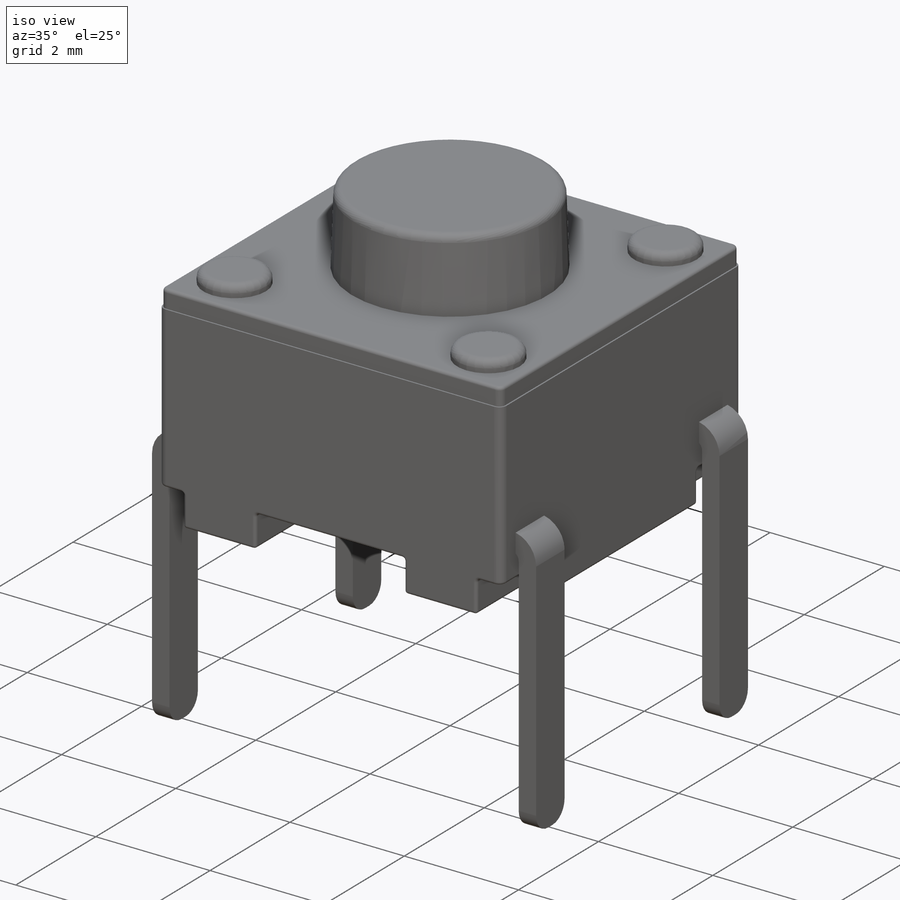
[diagram: iso view]
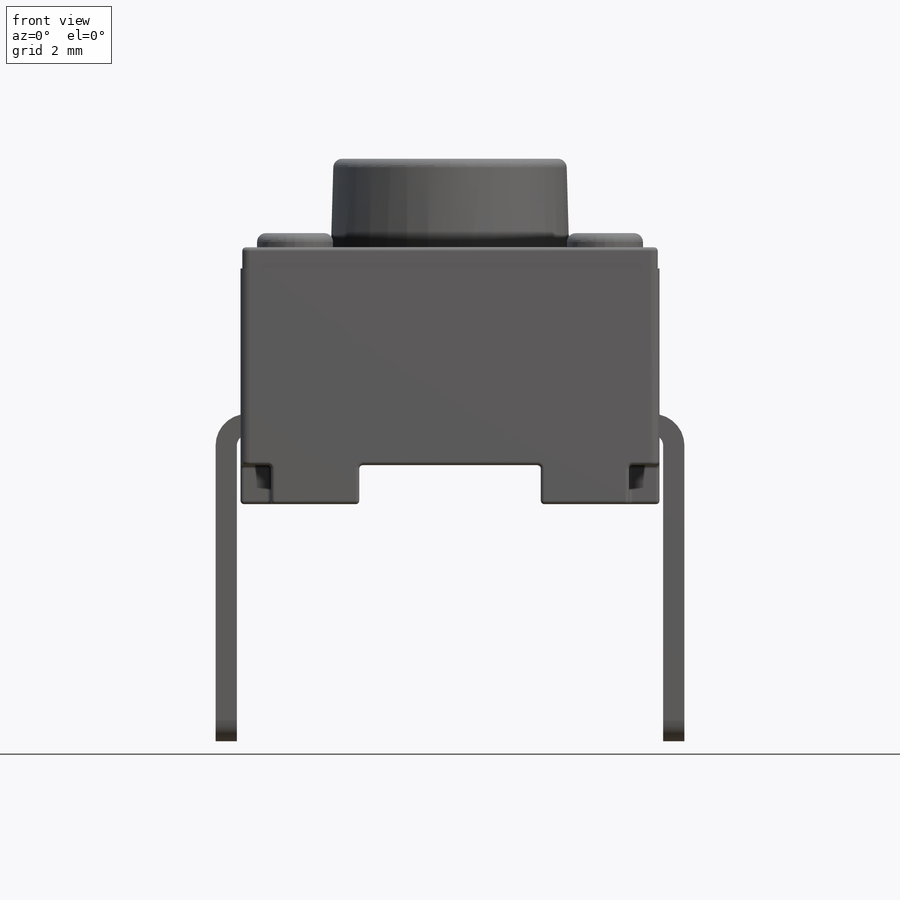
[diagram: front view]
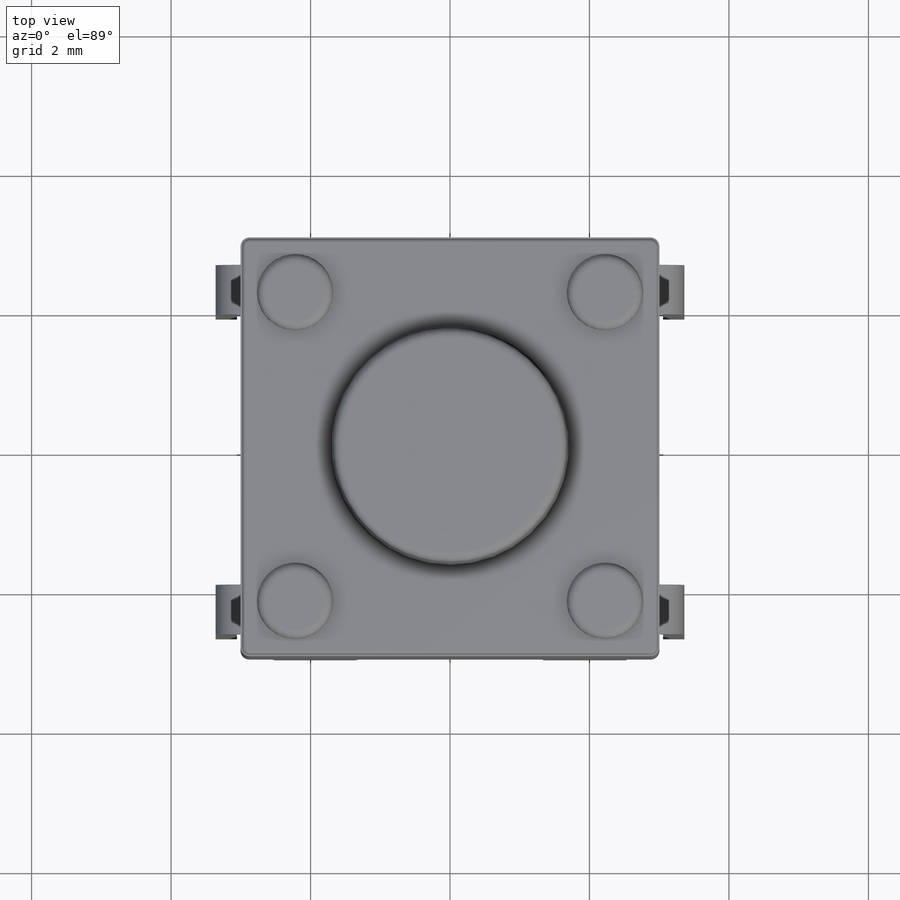
[diagram: top view]
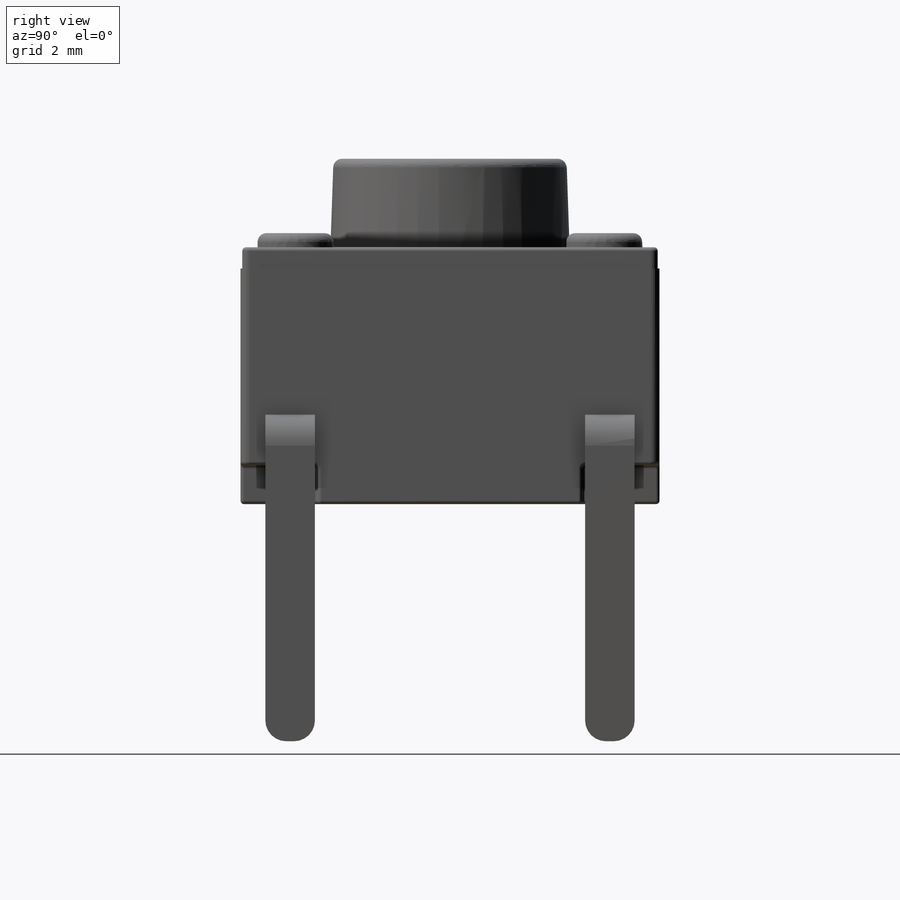
[diagram: right view]
SOLIDWORKS PART (.sldprt)
format: sldprt  version: not decoded by parser v0  size: 739,328 bytes
history: native  units: mm
features: sketch x6, extrude x5, fillet x4, mirror x2, material x1 (+11 scaffold rows collapsed)
feature tree (29):
  scaffold x11  (default folders/planes/origin — collapsed)
  material  "Matériau <non spécifié>"
  sketch  "Sketch1"  dims[D1=6.0071mm D2=6.0071mm]
  extrude  "Boss-Extrude1"  Depth=2.8194mm
  fillet  "Fillet1"  Radius=0.127mm
  sketch  "Sketch2"  dims[D1=0.0254mm]
  extrude  "Boss-Extrude2"  Depth=0.3048mm
  sketch  "Sketch3"  dims[D1=1.7018mm]
  extrude  "Boss-Extrude3"  [1 undecoded]
  sketch  "Sketch4"  dims[D1=1.0922mm]
  extrude  "Boss-Extrude4"  Depth=0.2032mm
  sketch  "Sketch5"  dims[D1=3.429mm]
  extrude  "Boss-Extrude5"  Depth=1.27mm
  fillet  "Fillet2"  Radius=0.127mm
  fillet  "Fillet3"  Radius=0.0508mm
  sketch  "Sketch6"  dims[c1.D2=0.15mm c1.D1=4.445mm c2.D2=3.3782mm c2.D3=3.0226mm c2.D4=3.5687mm c2.D5=2.032mm c2.D6=1.5748mm c2.D7=~0.460794mm c3.D7=92.0deg c3.D1=3.0226mm c3.D2=~2.017801mm c4.D1=3.4mm c4.D3=~3.056792mm c5.D1=0.7112mm c5.D19=0.3556mm c5.D5=0.3048mm c5.D6=1.0mm c5.D7=0.254mm]
  fillet  "Congé1"  Radius=0.3mm
  mirror  "Mirror1"
  mirror  "Mirror3"
decode coverage: 14 of 17 modeling features carry decoded parameters
note: ~ marks probable driven/reference dimensions
note: 1 parameter value undecoded
note: suppression state not decoded; provenance and decode notes live in map.json
